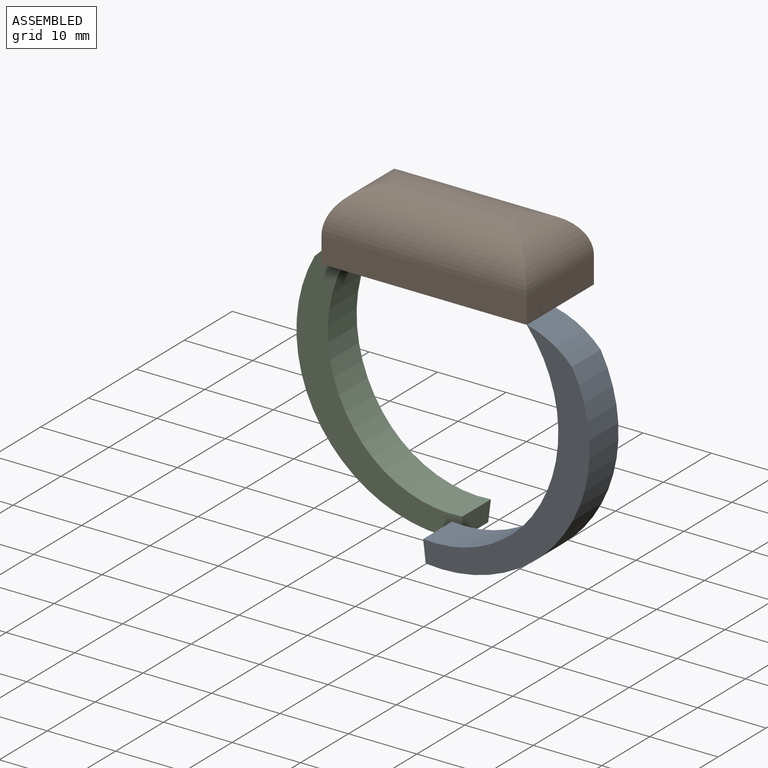
[diagram: assembled view]
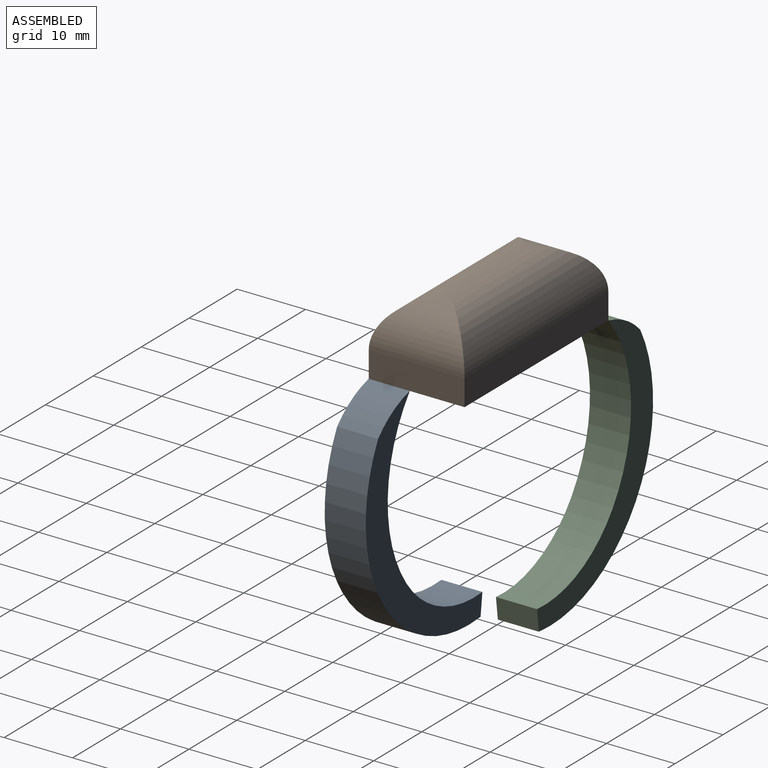
[diagram: assembled view, second angle]
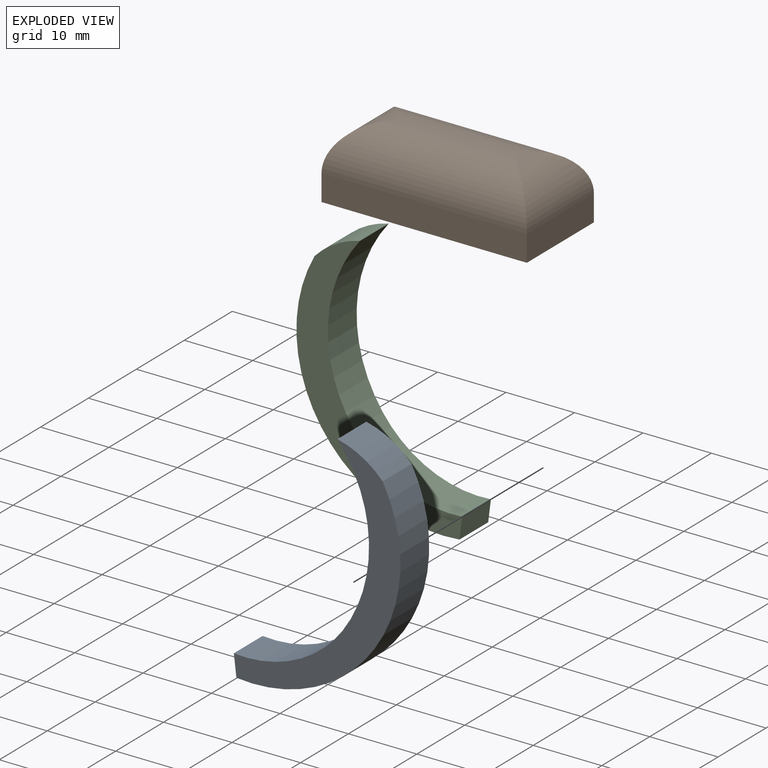
[diagram: exploded view]
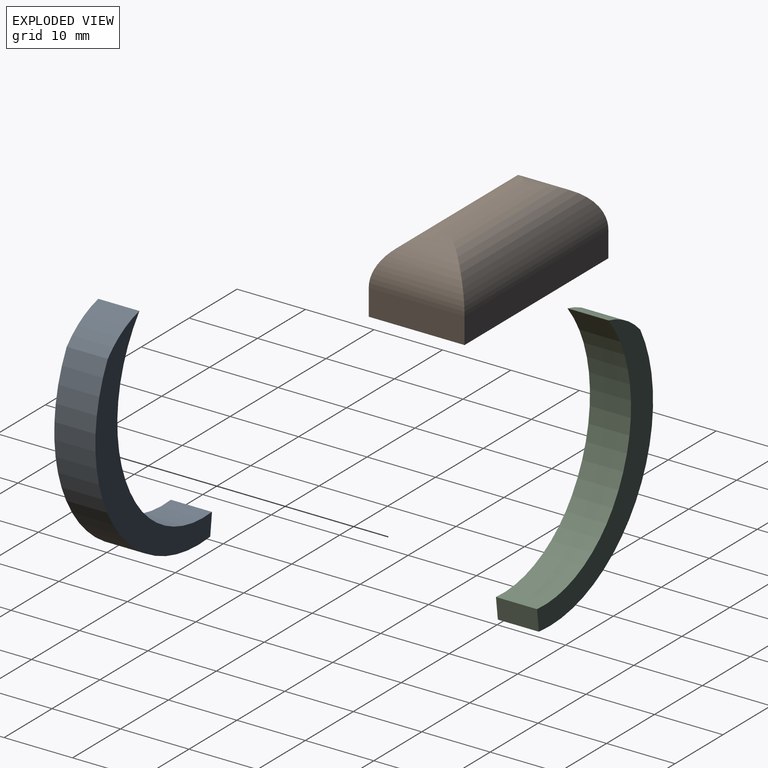
[diagram: exploded view, second angle]
ASSEMBLY  parts=3 mates=2
PART A: 7 faces, bbox 20.2x6x37.8 mm
  f0: cylinder r=21.54mm len=35.57mm, axis (0,1,0), area 281.6mm2, adj f1,f4,f5,f6
  f1: plane 6x2.97mm, normal (0.94,0,-0.33), area 18.9mm2, adj f0,f2,f5,f6
  f2: cylinder r=17.5mm len=13.89mm, axis (0,1,0), area 109.4mm2, adj f1,f3,f5,f6
  f3: cylinder r=20.75mm len=24.35mm, axis (0,1,0), area 162mm2, adj f2,f4,f5,f6
  f4: cylinder r=12.84mm len=7.28mm, axis (0,1,0), area 46.4mm2, adj f0,f3,f5,f6
  f5: plane 37.83x20.25mm, normal (0,-1,0), area 191.1mm2, adj f0,f1,f2,f3,f4
  f6: plane 37.83x20.25mm, normal (0,1,0), area 191.1mm2, adj f0,f1,f2,f3,f4
PART B: 10 faces, bbox 30x14x10.2 mm
  f0: plane 14x3.81mm, normal (1,0,0), area 53.3mm2, adj f1,f3,f5,f6
  f1: plane 30x3.81mm, normal (0,1,0), area 114.3mm2, adj f0,f2,f5,f7
  f2: plane 14x3.81mm, normal (-1,0,0), area 53.3mm2, adj f1,f3,f5,f9
  f3: plane 30x3.81mm, normal (0,-1,0), area 114.3mm2, adj f0,f2,f5,f8
  f4: plane 17.3x1.3mm, normal (0,0,1), area 22.5mm2, adj f6,f7,f8,f9
  f5: plane 30x14mm, normal (0,0,-1), area 420mm2, adj f0,f1,f2,f3
  f6: cylinder r=6.35mm len=14mm, axis (0,-1,0), area 93.6mm2, adj f0,f4,f7,f8
  f7: cylinder r=6.35mm len=30mm, axis (1,0,0), area 253.2mm2, adj f1,f4,f6,f9
  f8: cylinder r=6.35mm len=30mm, axis (-1,0,0), area 253.2mm2, adj f3,f4,f6,f9
  f9: cylinder r=6.35mm len=14mm, axis (0,1,0), area 93.6mm2, adj f2,f4,f7,f8
PART C: same geometry as A
PLACE A rot(axis=(0.11,0,0.99),180deg) t=(-17.26,-7.38,19.86)mm
PLACE B t=(-18.77,-0.38,34.76)mm fixed
PLACE C rot(axis=(0,-1,0),12.3deg) t=(-20.39,6.65,19.77)mm
MATE cylindrical C.f6 <-> B.f1  axis (0,1,0) through (-33.77,6.65,34.76)mm
MATE cylindrical B.f3 <-> A.f6  axis (0,-1,0) through (-3.77,-7.38,34.76)mm
